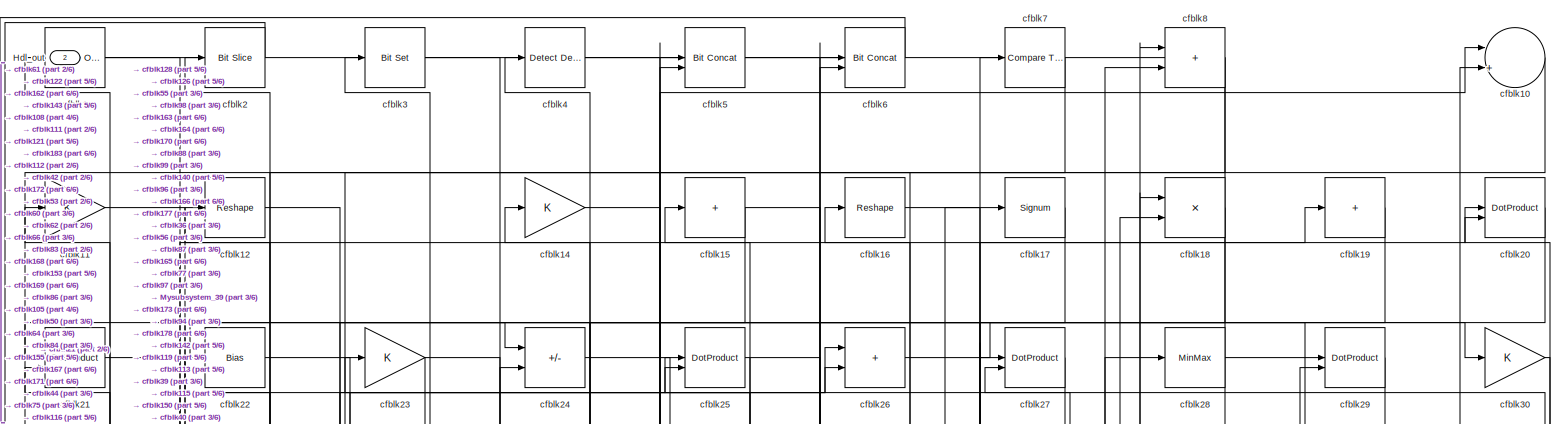
[diagram: root canvas - part 1/6, full width, top band]
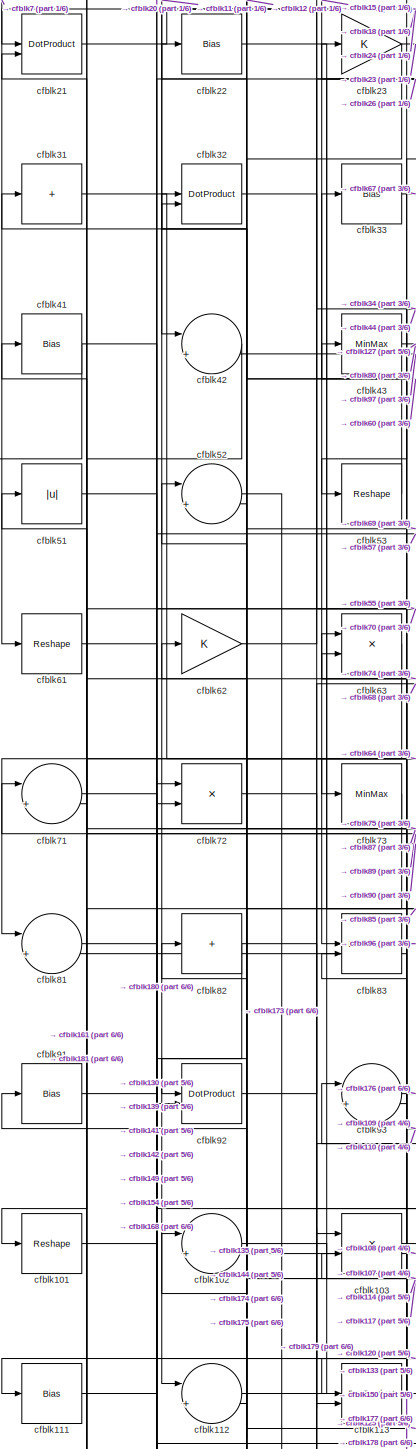
[diagram: root canvas - part 2/6, middle left region]
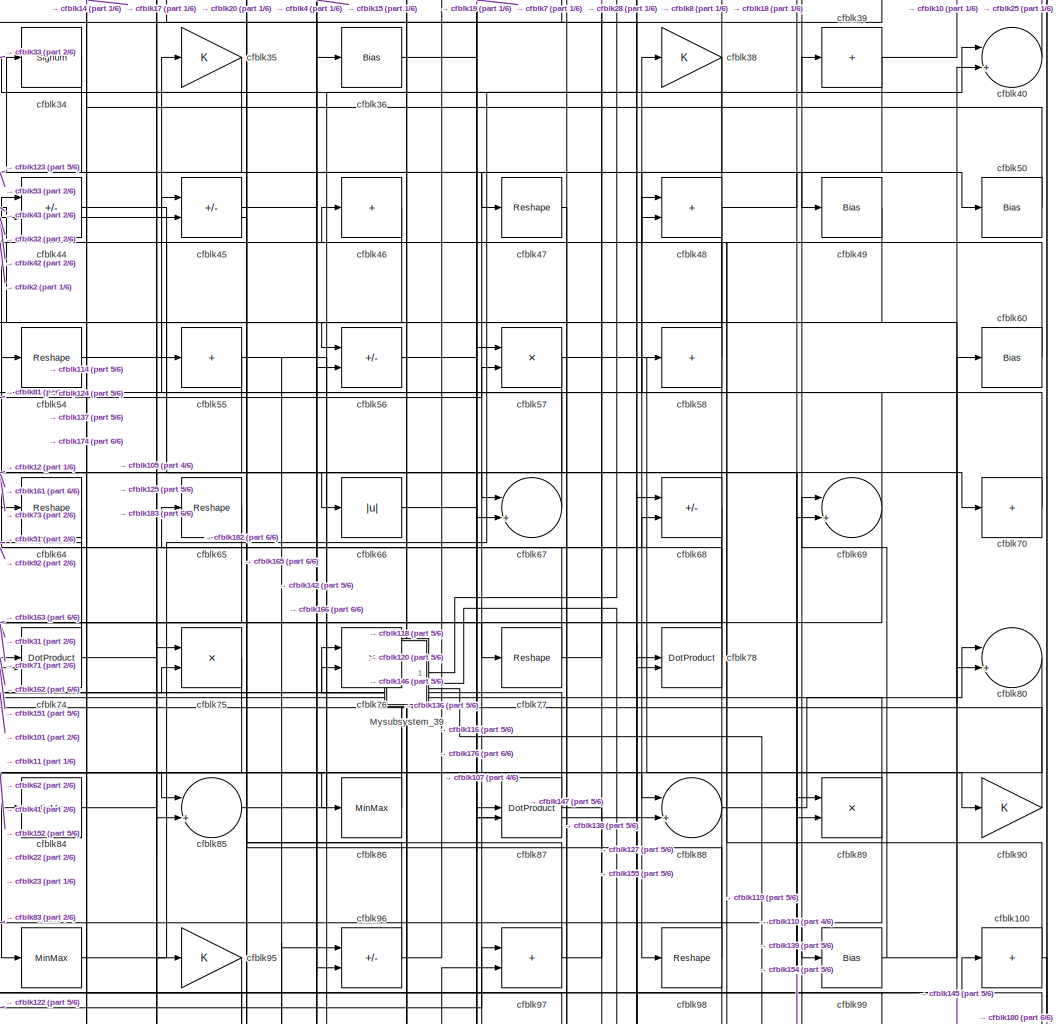
[diagram: root canvas - part 3/6, central region]
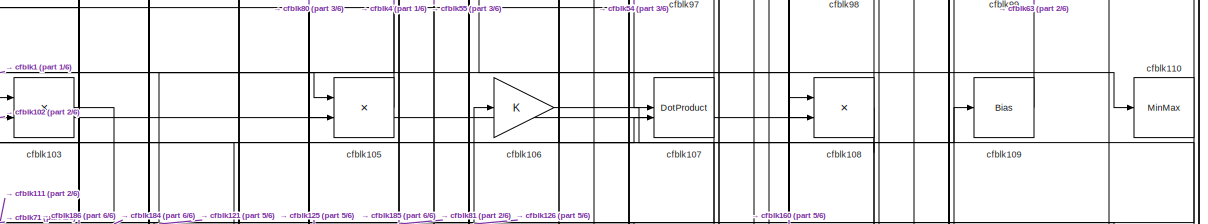
[diagram: root canvas - part 4/6, full width, middle band]
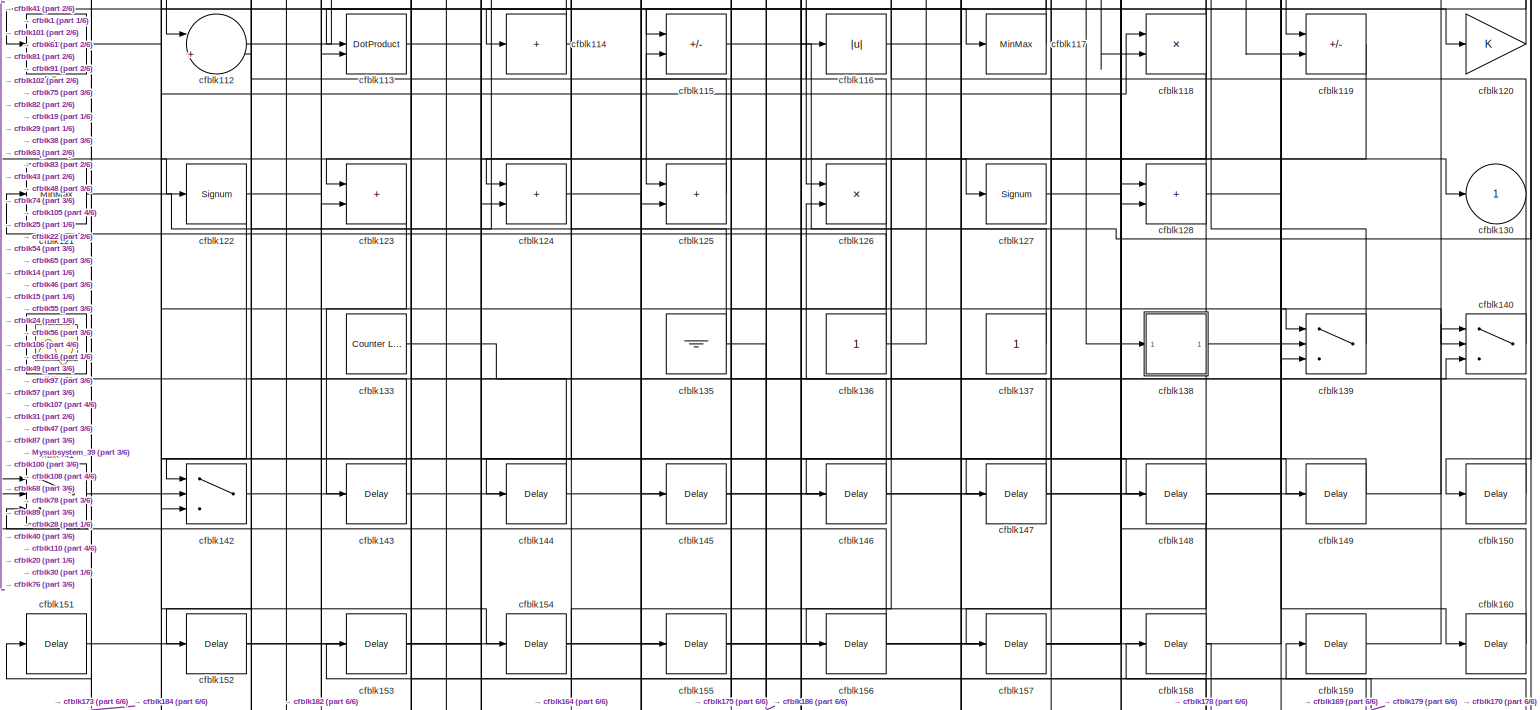
[diagram: root canvas - part 5/6, full width, bottom band]
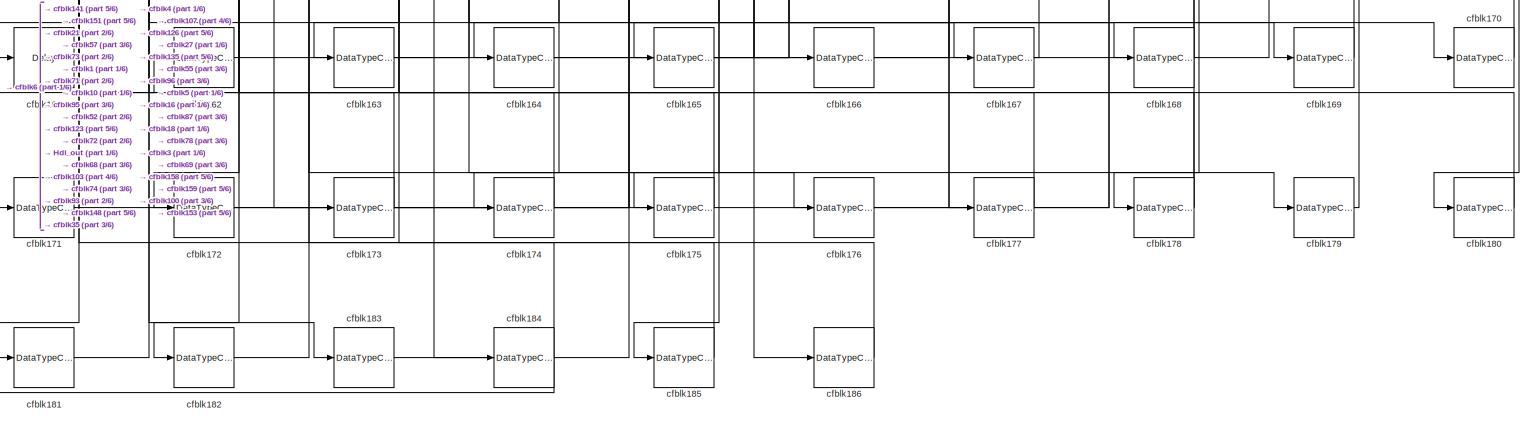
[diagram: root canvas - part 6/6, full width, bottom band]
MODEL slx_8de355fef36d
KIND model
CONFIG AbsTol = auto
CONFIG EnableMultiTasking = off
CONFIG FixedStep = auto
CONFIG MaxStep = auto
CONFIG MinStep = auto
CONFIG RelTol = 1e-3
CONFIG SampleTimeConstraint = Unconstrained
CONFIG SolverName = VariableStepAuto
CONFIG StartTime = 0.0
CONFIG StopTime = 10.0
BLOCK [Outport] Hdl_out
  OutDataTypeStr = uint8
  Port = 2
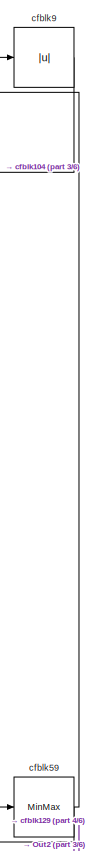
[diagram: Mysubsystem_39 - part 1/6, top right region]
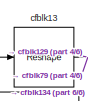
[diagram: Mysubsystem_39 - part 2/6, top left region]
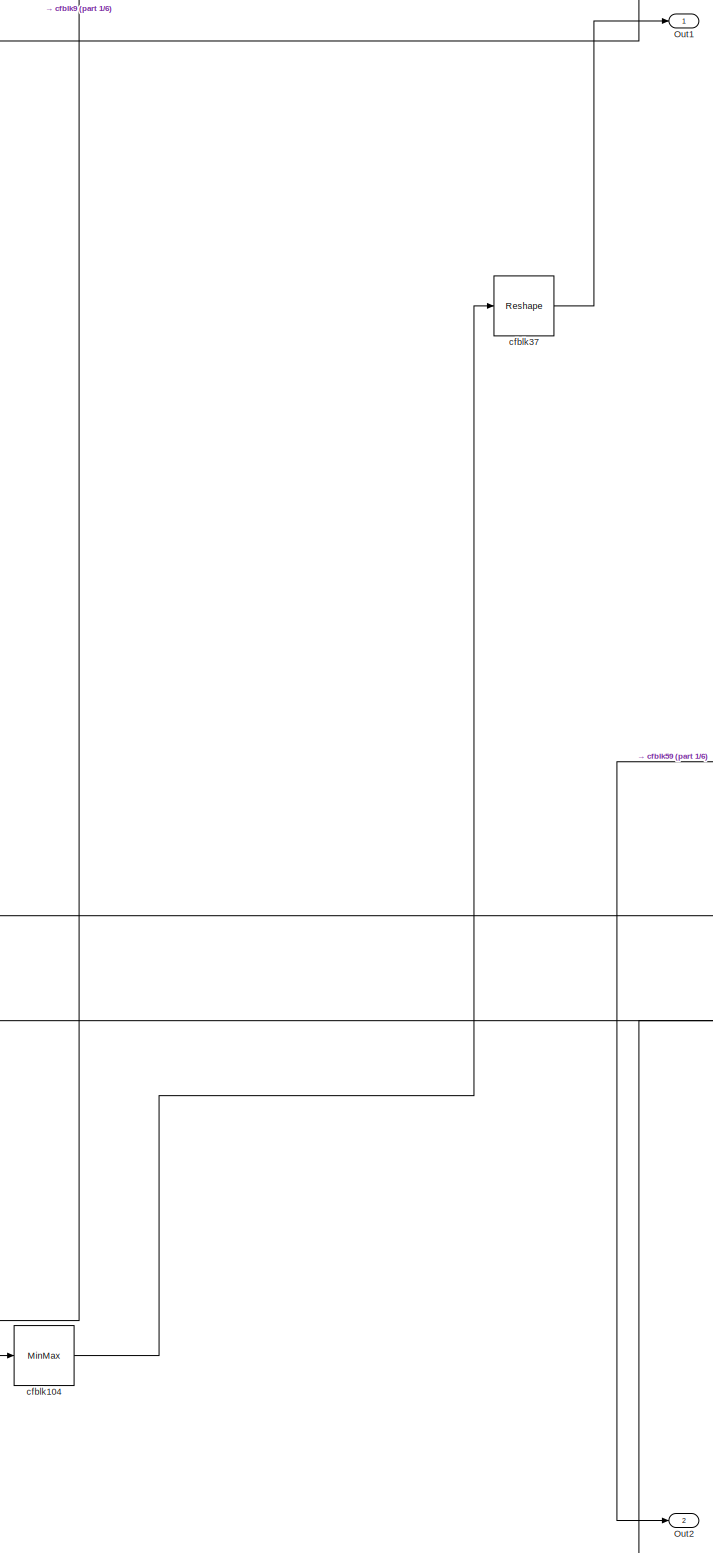
[diagram: Mysubsystem_39 - part 3/6, center side, full height]
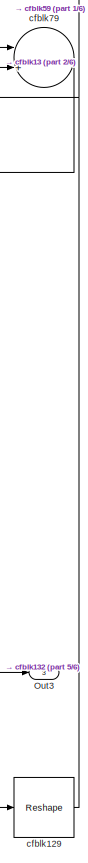
[diagram: Mysubsystem_39 - part 4/6, bottom right region]
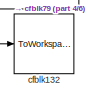
[diagram: Mysubsystem_39 - part 5/6, bottom left region]
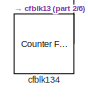
[diagram: Mysubsystem_39 - part 6/6, bottom left region]
BLOCK [SubSystem] Mysubsystem_39
  RTWFcnName = Mysubsystem_39
  RTWFcnNameOpts = User specified
  RTWFileNameOpts = Use function name
  RTWSystemCode = Reusable function
  TreatAsAtomicUnit = on
BLOCK [Outport] Mysubsystem_39/Out1
BLOCK [Outport] Mysubsystem_39/Out2
  Port = 2
BLOCK [Outport] Mysubsystem_39/Out3
  Port = 3
BLOCK [MinMax] Mysubsystem_39/cfblk104
BLOCK [Reshape] Mysubsystem_39/cfblk129
BLOCK [Reshape] Mysubsystem_39/cfblk13
BLOCK [ToWorkspace] Mysubsystem_39/cfblk132
  MaxDataPoints = inf
  SampleTime = -1
  SaveFormat = Timeseries
  VariableName = simout
BLOCK [Reference] Mysubsystem_39/cfblk134  REF=hdlsllib/Sources/Counter
Free-Running
  SourceBlock = hdlsllib/Sources/Counter\nFree-Running
  SourceType = Counter Free-Running
BLOCK [Reshape] Mysubsystem_39/cfblk37
BLOCK [MinMax] Mysubsystem_39/cfblk59
BLOCK [Sum] Mysubsystem_39/cfblk79
  Inputs = |++
BLOCK [Abs] Mysubsystem_39/cfblk9
  SaturateOnIntegerOverflow = off
BLOCK [Reference] cfblk1  REF=simulink/Logic and Bit
Operations/Bitwise
Operator
  LibrarySourceBlock = hdlsllib/Logic and Bit\nOperations/Bitwise\nOperator
  SourceBlock = simulink/Logic and Bit\nOperations/Bitwise\nOperator
  SourceType = Bitwise Operator
BLOCK [Sum] cfblk10
  Inputs = |++
  OutDataTypeStr = uint8
BLOCK [Sum] cfblk100
  IconShape = rectangular
  Inputs = +
  OutDataTypeStr = uint8
BLOCK [Reshape] cfblk101
BLOCK [Sum] cfblk102
  Inputs = |++
  OutDataTypeStr = uint8
BLOCK [Product] cfblk103
  Inputs = */
  OutDataTypeStr = uint8
  RndMeth = Zero
  SaturateOnIntegerOverflow = on
BLOCK [Product] cfblk105
  Inputs = */
  OutDataTypeStr = uint8
  RndMeth = Zero
  SaturateOnIntegerOverflow = on
BLOCK [Gain] cfblk106
  OutDataTypeStr = uint8
BLOCK [DotProduct] cfblk107
  OutDataTypeStr = uint8
BLOCK [Product] cfblk108
  Inputs = */
  OutDataTypeStr = uint8
  RndMeth = Zero
  SaturateOnIntegerOverflow = on
BLOCK [Bias] cfblk109
  Bias = 0.0
  SaturateOnIntegerOverflow = off
BLOCK [Gain] cfblk11
  OutDataTypeStr = uint8
BLOCK [MinMax] cfblk110
  OutDataTypeStr = uint8
BLOCK [Bias] cfblk111
  Bias = 0.0
  SaturateOnIntegerOverflow = off
BLOCK [Sum] cfblk112
  Inputs = |++
  OutDataTypeStr = uint8
BLOCK [DotProduct] cfblk113
  OutDataTypeStr = uint8
BLOCK [Sum] cfblk114
  IconShape = rectangular
  Inputs = +
  OutDataTypeStr = uint8
BLOCK [Sum] cfblk115
  IconShape = rectangular
  Inputs = +-
  OutDataTypeStr = uint8
BLOCK [Abs] cfblk116
  OutDataTypeStr = uint8
  SaturateOnIntegerOverflow = off
BLOCK [MinMax] cfblk117
  OutDataTypeStr = uint8
BLOCK [Product] cfblk118
  Inputs = */
  OutDataTypeStr = uint8
  RndMeth = Zero
  SaturateOnIntegerOverflow = on
BLOCK [Sum] cfblk119
  IconShape = rectangular
  Inputs = +-
  OutDataTypeStr = uint8
BLOCK [Reshape] cfblk12
BLOCK [Gain] cfblk120
  OutDataTypeStr = uint8
BLOCK [MinMax] cfblk121
  OutDataTypeStr = uint8
BLOCK [Signum] cfblk122
BLOCK [Sum] cfblk123
  IconShape = rectangular
  OutDataTypeStr = uint8
BLOCK [Sum] cfblk124
  IconShape = rectangular
  OutDataTypeStr = uint8
BLOCK [Sum] cfblk125
  IconShape = rectangular
  OutDataTypeStr = uint8
BLOCK [Product] cfblk126
  Inputs = */
  OutDataTypeStr = uint8
  RndMeth = Zero
  SaturateOnIntegerOverflow = on
BLOCK [Signum] cfblk127
BLOCK [Sum] cfblk128
  IconShape = rectangular
  OutDataTypeStr = uint8
BLOCK [Outport] cfblk130
  OutDataTypeStr = uint8
  VectorParamsAs1DForOutWhenUnconnected = off
BLOCK [Scope] cfblk131
  Floating = on
  NumInputPorts = 1
  ScopeSpecificationString = Simulink.scopes.TimeScopeBlockCfg('CurrentConfiguration', extmgr.ConfigurationSet(extmgr.Configuration('Core','General UI',true,'FigureColor',[0.156862745098039 0.156862745098039 0.156862745098039]),extmgr.Configuration('Core','Source UI',true),extmgr.Configuration('Sources','WiredSimulink',true,'DataLoggingVariableName','ScopeData1','DataLoggingSaveFormat','StructureWithTime','DataLoggingLimitDat...<+2713ch>
BLOCK [Reference] cfblk133  REF=hdlsllib/Sources/Counter
Limited
  SourceBlock = hdlsllib/Sources/Counter\nLimited
  SourceType = Counter Limited
BLOCK [Ground] cfblk135
BLOCK [Constant] cfblk136
  OutDataTypeStr = uint8
  SampleTime = -1
BLOCK [Constant] cfblk137
  OutDataTypeStr = uint8
  SampleTime = -1
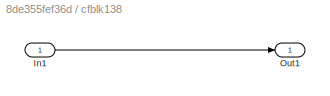
BLOCK [SubSystem] cfblk138
  LibrarySourceBlock = hdlsllib/Ports &\nSubsystems/Subsystem
BLOCK [Inport] cfblk138/In1
BLOCK [Outport] cfblk138/Out1
BLOCK [Switch] cfblk139
  InputSameDT = off
  OutDataTypeStr = uint8
  SaturateOnIntegerOverflow = off
BLOCK [Gain] cfblk14
  OutDataTypeStr = uint8
BLOCK [Switch] cfblk140
  InputSameDT = off
  OutDataTypeStr = uint8
  SaturateOnIntegerOverflow = off
BLOCK [Switch] cfblk141
  InputSameDT = off
  OutDataTypeStr = uint8
  SaturateOnIntegerOverflow = off
BLOCK [Switch] cfblk142
  InputSameDT = off
  OutDataTypeStr = uint8
  SaturateOnIntegerOverflow = off
BLOCK [Delay] cfblk143
  InputPortMap = u0
  SampleTime = 1
BLOCK [Delay] cfblk144
  InputPortMap = u0
  SampleTime = 1
BLOCK [Delay] cfblk145
  InputPortMap = u0
  SampleTime = 1
BLOCK [Delay] cfblk146
  InputPortMap = u0
  SampleTime = 1
BLOCK [Delay] cfblk147
  InputPortMap = u0
  SampleTime = 1
BLOCK [Delay] cfblk148
  InputPortMap = u0
  SampleTime = 1
BLOCK [Delay] cfblk149
  InputPortMap = u0
  SampleTime = 1
BLOCK [Sum] cfblk15
  IconShape = rectangular
  Inputs = +
  OutDataTypeStr = uint8
BLOCK [Delay] cfblk150
  InputPortMap = u0
  SampleTime = 1
BLOCK [Delay] cfblk151
  InputPortMap = u0
  SampleTime = 1
BLOCK [Delay] cfblk152
  InputPortMap = u0
  SampleTime = 1
BLOCK [Delay] cfblk153
  InputPortMap = u0
  SampleTime = 1
BLOCK [Delay] cfblk154
  InputPortMap = u0
  SampleTime = 1
BLOCK [Delay] cfblk155
  InputPortMap = u0
  SampleTime = 1
BLOCK [Delay] cfblk156
  InputPortMap = u0
  SampleTime = 1
BLOCK [Delay] cfblk157
  InputPortMap = u0
  SampleTime = 1
BLOCK [Delay] cfblk158
  InputPortMap = u0
  SampleTime = 1
BLOCK [Delay] cfblk159
  InputPortMap = u0
  SampleTime = 1
BLOCK [Reshape] cfblk16
BLOCK [Delay] cfblk160
  InputPortMap = u0
  SampleTime = 1
BLOCK [Delay] cfblk161
  InputPortMap = u0
  SampleTime = 1
BLOCK [DataTypeConversion] cfblk162
  OutDataTypeStr = uint8
  RndMeth = Floor
  SaturateOnIntegerOverflow = off
BLOCK [DataTypeConversion] cfblk163
  OutDataTypeStr = uint8
  RndMeth = Floor
  SaturateOnIntegerOverflow = off
BLOCK [DataTypeConversion] cfblk164
  OutDataTypeStr = uint8
  RndMeth = Floor
  SaturateOnIntegerOverflow = off
BLOCK [DataTypeConversion] cfblk165
  OutDataTypeStr = uint8
  RndMeth = Floor
  SaturateOnIntegerOverflow = off
BLOCK [DataTypeConversion] cfblk166
  OutDataTypeStr = uint8
  RndMeth = Floor
  SaturateOnIntegerOverflow = off
BLOCK [DataTypeConversion] cfblk167
  OutDataTypeStr = uint8
  RndMeth = Floor
  SaturateOnIntegerOverflow = off
BLOCK [DataTypeConversion] cfblk168
  OutDataTypeStr = uint8
  RndMeth = Floor
  SaturateOnIntegerOverflow = off
BLOCK [DataTypeConversion] cfblk169
  OutDataTypeStr = uint8
  RndMeth = Floor
  SaturateOnIntegerOverflow = off
BLOCK [Signum] cfblk17
BLOCK [DataTypeConversion] cfblk170
  OutDataTypeStr = uint8
  RndMeth = Floor
  SaturateOnIntegerOverflow = off
BLOCK [DataTypeConversion] cfblk171
  OutDataTypeStr = uint8
  RndMeth = Floor
  SaturateOnIntegerOverflow = off
BLOCK [DataTypeConversion] cfblk172
  OutDataTypeStr = uint8
  RndMeth = Floor
  SaturateOnIntegerOverflow = off
BLOCK [DataTypeConversion] cfblk173
  OutDataTypeStr = uint8
  RndMeth = Floor
  SaturateOnIntegerOverflow = off
BLOCK [DataTypeConversion] cfblk174
  OutDataTypeStr = uint8
  RndMeth = Floor
  SaturateOnIntegerOverflow = off
BLOCK [DataTypeConversion] cfblk175
  OutDataTypeStr = uint8
  RndMeth = Floor
  SaturateOnIntegerOverflow = off
BLOCK [DataTypeConversion] cfblk176
  OutDataTypeStr = uint8
  RndMeth = Floor
  SaturateOnIntegerOverflow = off
BLOCK [DataTypeConversion] cfblk177
  OutDataTypeStr = uint8
  RndMeth = Floor
  SaturateOnIntegerOverflow = off
BLOCK [DataTypeConversion] cfblk178
  OutDataTypeStr = uint8
  RndMeth = Floor
  SaturateOnIntegerOverflow = off
BLOCK [DataTypeConversion] cfblk179
  OutDataTypeStr = uint8
  RndMeth = Floor
  SaturateOnIntegerOverflow = off
BLOCK [Product] cfblk18
  Inputs = */
  OutDataTypeStr = uint8
  RndMeth = Zero
  SaturateOnIntegerOverflow = on
BLOCK [DataTypeConversion] cfblk180
  OutDataTypeStr = uint8
  RndMeth = Floor
  SaturateOnIntegerOverflow = off
BLOCK [DataTypeConversion] cfblk181
  OutDataTypeStr = uint8
  RndMeth = Floor
  SaturateOnIntegerOverflow = off
BLOCK [DataTypeConversion] cfblk182
  OutDataTypeStr = uint8
  RndMeth = Floor
  SaturateOnIntegerOverflow = off
BLOCK [DataTypeConversion] cfblk183
  OutDataTypeStr = uint8
  RndMeth = Floor
  SaturateOnIntegerOverflow = off
BLOCK [DataTypeConversion] cfblk184
  OutDataTypeStr = uint8
  RndMeth = Floor
  SaturateOnIntegerOverflow = off
BLOCK [DataTypeConversion] cfblk185
  OutDataTypeStr = uint8
  RndMeth = Floor
  SaturateOnIntegerOverflow = off
BLOCK [DataTypeConversion] cfblk186
  OutDataTypeStr = uint8
  RndMeth = Floor
  SaturateOnIntegerOverflow = off
BLOCK [Sum] cfblk19
  IconShape = rectangular
  Inputs = +
  OutDataTypeStr = uint8
BLOCK [Reference] cfblk2  REF=hdlsllib/Logic and Bit
Operations/Bit Slice
  SourceBlock = hdlsllib/Logic and Bit\nOperations/Bit Slice
  SourceType = Bit Slice
BLOCK [DotProduct] cfblk20
  OutDataTypeStr = uint8
BLOCK [DotProduct] cfblk21
  OutDataTypeStr = uint8
BLOCK [Bias] cfblk22
  Bias = 0.0
  SaturateOnIntegerOverflow = off
BLOCK [Gain] cfblk23
  OutDataTypeStr = uint8
BLOCK [Sum] cfblk24
  IconShape = rectangular
  Inputs = +-
  OutDataTypeStr = uint8
BLOCK [DotProduct] cfblk25
  OutDataTypeStr = uint8
BLOCK [Sum] cfblk26
  IconShape = rectangular
  OutDataTypeStr = uint8
BLOCK [DotProduct] cfblk27
  OutDataTypeStr = uint8
BLOCK [MinMax] cfblk28
  OutDataTypeStr = uint8
BLOCK [DotProduct] cfblk29
  OutDataTypeStr = uint8
BLOCK [Reference] cfblk3  REF=simulink/Logic and Bit
Operations/Bit Set
  LibrarySourceBlock = hdlsllib/Logic and Bit\nOperations/Bit Set
  SourceBlock = simulink/Logic and Bit\nOperations/Bit Set
  SourceType = Bit Set
BLOCK [Gain] cfblk30
  OutDataTypeStr = uint8
BLOCK [Sum] cfblk31
  IconShape = rectangular
  Inputs = +
  OutDataTypeStr = uint8
BLOCK [DotProduct] cfblk32
  OutDataTypeStr = uint8
BLOCK [Bias] cfblk33
  Bias = 0.0
  SaturateOnIntegerOverflow = off
BLOCK [Signum] cfblk34
BLOCK [Gain] cfblk35
  OutDataTypeStr = uint8
BLOCK [Bias] cfblk36
  Bias = 0.0
  SaturateOnIntegerOverflow = off
BLOCK [Gain] cfblk38
  OutDataTypeStr = uint8
BLOCK [Sum] cfblk39
  IconShape = rectangular
  Inputs = +
  OutDataTypeStr = uint8
BLOCK [Reference] cfblk4  REF=simulink/Logic and Bit
Operations/Detect
Decrease
  LibrarySourceBlock = hdlsllib/Logic and Bit\nOperations/Detect\nDecrease
  SourceBlock = simulink/Logic and Bit\nOperations/Detect\nDecrease
  SourceType = Detect Decrease
BLOCK [Sum] cfblk40
  Inputs = |++
  OutDataTypeStr = uint8
BLOCK [Bias] cfblk41
  Bias = 0.0
  SaturateOnIntegerOverflow = off
BLOCK [Sum] cfblk42
  Inputs = |++
  OutDataTypeStr = uint8
BLOCK [MinMax] cfblk43
  OutDataTypeStr = uint8
BLOCK [Sum] cfblk44
  IconShape = rectangular
  Inputs = +-
  OutDataTypeStr = uint8
BLOCK [Sum] cfblk45
  IconShape = rectangular
  Inputs = +-
  OutDataTypeStr = uint8
BLOCK [Sum] cfblk46
  IconShape = rectangular
  Inputs = +
  OutDataTypeStr = uint8
BLOCK [Reshape] cfblk47
BLOCK [Sum] cfblk48
  IconShape = rectangular
  OutDataTypeStr = uint8
BLOCK [Bias] cfblk49
  Bias = 0.0
  SaturateOnIntegerOverflow = off
BLOCK [Reference] cfblk5  REF=hdlsllib/Logic and Bit
Operations/Bit Concat
  SourceBlock = hdlsllib/Logic and Bit\nOperations/Bit Concat
  SourceType = Bit Concat
BLOCK [Bias] cfblk50
  Bias = 0.0
  SaturateOnIntegerOverflow = off
BLOCK [Abs] cfblk51
  OutDataTypeStr = uint8
  SaturateOnIntegerOverflow = off
BLOCK [Sum] cfblk52
  Inputs = |++
  OutDataTypeStr = uint8
BLOCK [Reshape] cfblk53
BLOCK [Reshape] cfblk54
BLOCK [Sum] cfblk55
  IconShape = rectangular
  Inputs = +
  OutDataTypeStr = uint8
BLOCK [Sum] cfblk56
  IconShape = rectangular
  Inputs = +-
  OutDataTypeStr = uint8
BLOCK [Product] cfblk57
  Inputs = */
  OutDataTypeStr = uint8
  RndMeth = Zero
  SaturateOnIntegerOverflow = on
BLOCK [Sum] cfblk58
  IconShape = rectangular
  Inputs = +
  OutDataTypeStr = uint8
BLOCK [Reference] cfblk6  REF=hdlsllib/Logic and Bit
Operations/Bit Concat
  SourceBlock = hdlsllib/Logic and Bit\nOperations/Bit Concat
  SourceType = Bit Concat
BLOCK [Bias] cfblk60
  Bias = 0.0
  SaturateOnIntegerOverflow = off
BLOCK [Reshape] cfblk61
BLOCK [Gain] cfblk62
  OutDataTypeStr = uint8
BLOCK [Product] cfblk63
  Inputs = */
  OutDataTypeStr = uint8
  RndMeth = Zero
  SaturateOnIntegerOverflow = on
BLOCK [Reshape] cfblk64
BLOCK [Reshape] cfblk65
BLOCK [Abs] cfblk66
  OutDataTypeStr = uint8
  SaturateOnIntegerOverflow = off
BLOCK [Sum] cfblk67
  Inputs = |++
  OutDataTypeStr = uint8
BLOCK [Sum] cfblk68
  IconShape = rectangular
  Inputs = +-
  OutDataTypeStr = uint8
BLOCK [Sum] cfblk69
  Inputs = |++
  OutDataTypeStr = uint8
BLOCK [Reference] cfblk7  REF=hdlsllib/Logic and Bit
Operations/Compare
To Constant
  SourceBlock = hdlsllib/Logic and Bit\nOperations/Compare\nTo Constant
  SourceType = Compare To Constant
BLOCK [Sum] cfblk70
  IconShape = rectangular
  Inputs = +
  OutDataTypeStr = uint8
BLOCK [Sum] cfblk71
  Inputs = |++
  OutDataTypeStr = uint8
BLOCK [Product] cfblk72
  Inputs = */
  OutDataTypeStr = uint8
  RndMeth = Zero
  SaturateOnIntegerOverflow = on
BLOCK [MinMax] cfblk73
  OutDataTypeStr = uint8
BLOCK [DotProduct] cfblk74
  OutDataTypeStr = uint8
BLOCK [Product] cfblk75
  Inputs = */
  OutDataTypeStr = uint8
  RndMeth = Zero
  SaturateOnIntegerOverflow = on
BLOCK [Product] cfblk76
  Inputs = */
  OutDataTypeStr = uint8
  RndMeth = Zero
  SaturateOnIntegerOverflow = on
BLOCK [Reshape] cfblk77
BLOCK [DotProduct] cfblk78
  OutDataTypeStr = uint8
BLOCK [Sum] cfblk8
  IconShape = rectangular
  OutDataTypeStr = uint8
BLOCK [Sum] cfblk80
  Inputs = |++
  OutDataTypeStr = uint8
BLOCK [Sum] cfblk81
  Inputs = |++
  OutDataTypeStr = uint8
BLOCK [Sum] cfblk82
  IconShape = rectangular
  Inputs = +
  OutDataTypeStr = uint8
BLOCK [DotProduct] cfblk83
  OutDataTypeStr = uint8
BLOCK [MinMax] cfblk84
  OutDataTypeStr = uint8
BLOCK [Sum] cfblk85
  Inputs = |++
  OutDataTypeStr = uint8
BLOCK [MinMax] cfblk86
  OutDataTypeStr = uint8
BLOCK [DotProduct] cfblk87
  OutDataTypeStr = uint8
BLOCK [Sum] cfblk88
  Inputs = |++
  OutDataTypeStr = uint8
BLOCK [Product] cfblk89
  Inputs = */
  OutDataTypeStr = uint8
  RndMeth = Zero
  SaturateOnIntegerOverflow = on
BLOCK [Gain] cfblk90
  OutDataTypeStr = uint8
BLOCK [Bias] cfblk91
  Bias = 0.0
  SaturateOnIntegerOverflow = off
BLOCK [DotProduct] cfblk92
  OutDataTypeStr = uint8
BLOCK [Sum] cfblk93
  Inputs = |++
  OutDataTypeStr = uint8
BLOCK [MinMax] cfblk94
  OutDataTypeStr = uint8
BLOCK [Gain] cfblk95
  OutDataTypeStr = uint8
BLOCK [Sum] cfblk96
  IconShape = rectangular
  Inputs = +-
  OutDataTypeStr = uint8
BLOCK [Sum] cfblk97
  IconShape = rectangular
  OutDataTypeStr = uint8
BLOCK [Reshape] cfblk98
BLOCK [Bias] cfblk99
  Bias = 0.0
  SaturateOnIntegerOverflow = off
LINE Mysubsystem_39/cfblk104:1 -> Mysubsystem_39/cfblk37:1
NET Mysubsystem_39/cfblk129:1 -> Mysubsystem_39/cfblk59:1, Mysubsystem_39/cfblk79:1
LINE Mysubsystem_39/cfblk134:1 -> Mysubsystem_39/cfblk13:1
NET Mysubsystem_39/cfblk13:1 -> Mysubsystem_39/cfblk129:1, Mysubsystem_39/cfblk79:2
LINE Mysubsystem_39/cfblk37:1 -> Mysubsystem_39/Out1:1
NET Mysubsystem_39/cfblk59:1 -> Mysubsystem_39/Out2:1, Mysubsystem_39/cfblk9:1
NET Mysubsystem_39/cfblk79:1 -> Mysubsystem_39/Out3:1, Mysubsystem_39/cfblk132:1
LINE Mysubsystem_39/cfblk9:1 -> Mysubsystem_39/cfblk104:1
LINE Mysubsystem_39:1 -> cfblk18:2
LINE Mysubsystem_39:2 -> cfblk118:2
LINE Mysubsystem_39:3 -> cfblk119:2
NET cfblk100:1 -> cfblk180:1, cfblk48:2
NET cfblk101:1 -> cfblk130:1, cfblk75:2
LINE cfblk102:1 -> cfblk107:2
LINE cfblk103:1 -> cfblk184:1
LINE cfblk105:1 -> cfblk4:1
LINE cfblk106:1 -> cfblk109:1
NET cfblk107:1 -> cfblk126:1, cfblk185:1, cfblk81:2
LINE cfblk108:1 -> cfblk102:2
LINE cfblk109:1 -> cfblk63:1
NET cfblk10:1 -> cfblk172:1, cfblk56:1
NET cfblk110:1 -> cfblk111:1, cfblk125:1, cfblk71:1
LINE cfblk111:1 -> cfblk20:2
LINE cfblk112:1 -> cfblk26:1
LINE cfblk113:1 -> cfblk148:1
NET cfblk114:1 -> cfblk144:1, cfblk22:1
LINE cfblk115:1 -> cfblk20:1
LINE cfblk116:1 -> cfblk57:1
LINE cfblk117:1 -> cfblk31:1
NET cfblk118:1 -> cfblk156:1, cfblk76:2
LINE cfblk119:1 -> cfblk157:1
LINE cfblk11:1 -> cfblk42:1
LINE cfblk120:1 -> cfblk76:1
NET cfblk121:1 -> cfblk105:1, cfblk25:2
NET cfblk122:1 -> cfblk142:3, cfblk97:1
LINE cfblk123:1 -> cfblk143:1
LINE cfblk124:1 -> cfblk145:1
LINE cfblk125:1 -> cfblk91:1
NET cfblk126:1 -> cfblk106:1, cfblk15:1, cfblk175:1
LINE cfblk127:1 -> cfblk100:1
LINE cfblk128:1 -> cfblk140:2
NET cfblk12:1 -> cfblk30:1, cfblk66:1
NET cfblk133:1 -> cfblk140:3, cfblk63:2
NET cfblk135:1 -> cfblk186:1, cfblk82:1
NET cfblk136:1 -> cfblk121:1, cfblk97:2
LINE cfblk137:1 -> cfblk54:1
LINE cfblk138/In1:1 -> cfblk138/Out1:1
LINE cfblk138:1 -> cfblk160:1
LINE cfblk139:1 -> cfblk48:1
LINE cfblk140:1 -> cfblk16:1
LINE cfblk141:1 -> cfblk118:1
NET cfblk142:1 -> cfblk29:2, cfblk56:2
LINE cfblk143:1 -> cfblk1:1
LINE cfblk144:1 -> cfblk102:1
LINE cfblk145:1 -> cfblk40:2
LINE cfblk146:1 -> cfblk126:2
LINE cfblk147:1 -> cfblk115:2
LINE cfblk148:1 -> cfblk164:1
LINE cfblk149:1 -> cfblk142:1
LINE cfblk14:1 -> cfblk155:1
LINE cfblk150:1 -> cfblk83:2
LINE cfblk151:1 -> cfblk74:2
LINE cfblk152:1 -> cfblk68:1
LINE cfblk153:1 -> cfblk24:2
LINE cfblk154:1 -> cfblk89:1
LINE cfblk155:1 -> cfblk78:1
LINE cfblk156:1 -> cfblk141:1
LINE cfblk157:1 -> cfblk128:1
LINE cfblk158:1 -> cfblk178:1
LINE cfblk159:1 -> cfblk140:1
NET cfblk15:1 -> cfblk21:1, cfblk88:1
LINE cfblk160:1 -> cfblk108:1
LINE cfblk161:1 -> cfblk21:2
LINE cfblk162:1 -> cfblk74:1
LINE cfblk163:1 -> cfblk6:1
LINE cfblk164:1 -> cfblk6:2
NET cfblk165:1 -> cfblk69:2, cfblk96:1
LINE cfblk166:1 -> cfblk27:1
LINE cfblk167:1 -> cfblk27:2
LINE cfblk168:1 -> cfblk3:1
LINE cfblk169:1 -> cfblk158:1
LINE cfblk16:1 -> cfblk177:1
LINE cfblk170:1 -> cfblk153:1
LINE cfblk171:1 -> cfblk5:1
LINE cfblk172:1 -> cfblk5:2
NET cfblk173:1 -> cfblk151:1, cfblk18:1
LINE cfblk174:1 -> cfblk52:1
LINE cfblk175:1 -> cfblk52:2
NET cfblk176:1 -> cfblk78:2, cfblk87:1
LINE cfblk177:1 -> cfblk93:1
NET cfblk178:1 -> Hdl_out:1, cfblk93:2
LINE cfblk179:1 -> cfblk159:1
LINE cfblk17:1 -> cfblk84:1
LINE cfblk180:1 -> cfblk72:1
LINE cfblk181:1 -> cfblk72:2
LINE cfblk182:1 -> cfblk123:2
LINE cfblk183:1 -> cfblk95:1
NET cfblk184:1 -> cfblk141:3, cfblk171:1
LINE cfblk185:1 -> cfblk103:1
LINE cfblk186:1 -> cfblk103:2
LINE cfblk18:1 -> cfblk112:1
NET cfblk19:1 -> cfblk113:2, cfblk87:2
NET cfblk1:1 -> cfblk108:2, cfblk183:1
LINE cfblk20:1 -> cfblk64:1
LINE cfblk21:1 -> cfblk24:1
LINE cfblk22:1 -> cfblk85:1
NET cfblk23:1 -> cfblk112:2, cfblk86:1
NET cfblk24:1 -> cfblk116:1, cfblk128:2
NET cfblk25:1 -> cfblk115:1, cfblk55:1, cfblk99:1
LINE cfblk26:1 -> cfblk29:1
LINE cfblk27:1 -> cfblk165:1
LINE cfblk28:1 -> cfblk119:1
LINE cfblk29:1 -> cfblk113:1
LINE cfblk2:1 -> cfblk122:1
LINE cfblk30:1 -> cfblk150:1
LINE cfblk31:1 -> cfblk85:2
LINE cfblk32:1 -> cfblk44:2
LINE cfblk33:1 -> cfblk67:1
LINE cfblk34:1 -> cfblk53:1
LINE cfblk35:1 -> cfblk174:1
NET cfblk36:1 -> cfblk19:1, cfblk88:2
NET cfblk38:1 -> cfblk123:1, cfblk45:2
NET cfblk39:1 -> cfblk10:2, cfblk98:1
LINE cfblk3:1 -> cfblk169:1
LINE cfblk40:1 -> cfblk25:1
NET cfblk41:1 -> cfblk141:2, cfblk142:2
LINE cfblk42:1 -> cfblk101:1
NET cfblk43:1 -> cfblk127:1, cfblk80:2
NET cfblk44:1 -> cfblk10:1, cfblk89:2
NET cfblk45:1 -> cfblk47:1, cfblk49:1
LINE cfblk46:1 -> cfblk125:2
LINE cfblk47:1 -> cfblk147:1
NET cfblk48:1 -> cfblk124:2, cfblk50:1
NET cfblk49:1 -> cfblk124:1, cfblk146:1
NET cfblk4:1 -> cfblk167:1, cfblk75:1
LINE cfblk50:1 -> cfblk14:1
LINE cfblk51:1 -> cfblk70:1
LINE cfblk52:1 -> cfblk173:1
LINE cfblk53:1 -> cfblk12:1
NET cfblk54:1 -> cfblk107:1, cfblk36:1
NET cfblk55:1 -> cfblk110:1, cfblk139:2, cfblk166:1, cfblk73:1
LINE cfblk56:1 -> cfblk7:1
NET cfblk57:1 -> cfblk161:1, cfblk90:1
LINE cfblk58:1 -> cfblk46:1
LINE cfblk5:1 -> cfblk170:1
NET cfblk60:1 -> cfblk2:1, cfblk33:1
LINE cfblk61:1 -> cfblk149:1
NET cfblk62:1 -> cfblk26:2, cfblk32:2
LINE cfblk63:1 -> cfblk81:1
LINE cfblk64:1 -> cfblk92:1
LINE cfblk65:1 -> cfblk114:1
LINE cfblk66:1 -> cfblk67:2
LINE cfblk67:1 -> cfblk35:1
LINE cfblk68:1 -> cfblk163:1
NET cfblk69:1 -> cfblk32:1, cfblk71:2
LINE cfblk6:1 -> cfblk162:1
LINE cfblk70:1 -> cfblk38:1
LINE cfblk71:1 -> cfblk168:1
LINE cfblk72:1 -> cfblk179:1
LINE cfblk73:1 -> cfblk181:1
NET cfblk74:1 -> cfblk51:1, cfblk77:1
LINE cfblk75:1 -> cfblk152:1
LINE cfblk76:1 -> cfblk94:1
NET cfblk77:1 -> cfblk44:1, cfblk8:2
LINE cfblk78:1 -> cfblk65:1
LINE cfblk7:1 -> cfblk61:1
LINE cfblk80:1 -> cfblk105:2
NET cfblk81:1 -> cfblk120:1, cfblk57:2
NET cfblk82:1 -> cfblk117:1, cfblk92:2
LINE cfblk83:1 -> cfblk96:2
NET cfblk84:1 -> cfblk39:1, cfblk58:1
LINE cfblk85:1 -> cfblk40:1
LINE cfblk86:1 -> cfblk11:1
NET cfblk87:1 -> cfblk138:1, cfblk62:1
LINE cfblk88:1 -> cfblk80:1
NET cfblk89:1 -> cfblk139:3, cfblk41:1
LINE cfblk8:1 -> cfblk83:1
LINE cfblk90:1 -> cfblk43:1
NET cfblk91:1 -> cfblk139:1, cfblk154:1
LINE cfblk92:1 -> cfblk68:2
LINE cfblk93:1 -> cfblk176:1
LINE cfblk94:1 -> cfblk8:1
LINE cfblk95:1 -> cfblk182:1
NET cfblk96:1 -> cfblk17:1, cfblk34:1, cfblk45:1
NET cfblk97:1 -> cfblk28:1, cfblk42:2
LINE cfblk98:1 -> cfblk23:1
NET cfblk99:1 -> cfblk60:1, cfblk69:1
note: NET lines group one-source signal fan-out (src -> all destinations, sorted); 1:1 wires keep LINE
